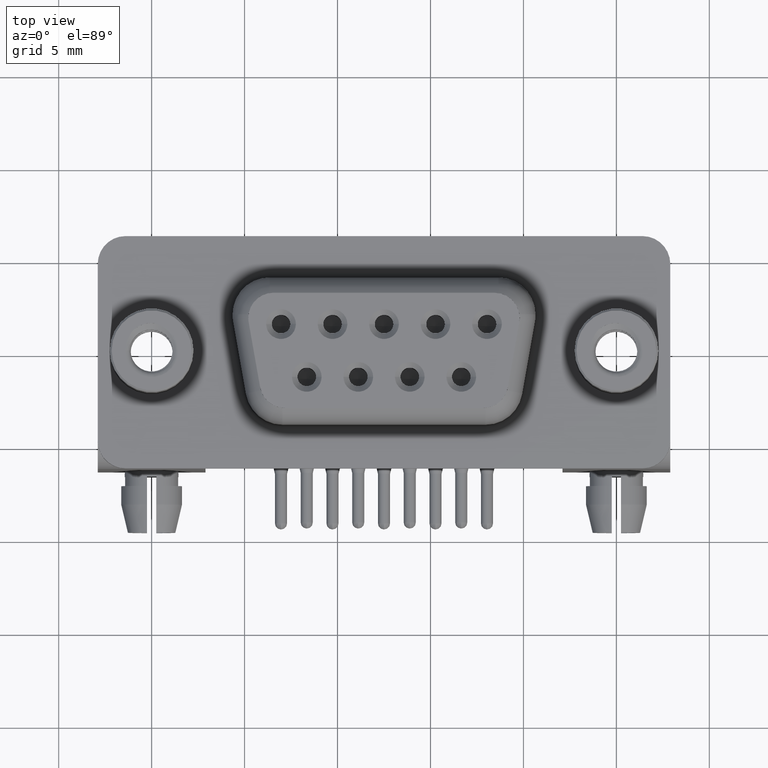
[diagram: clean part render]
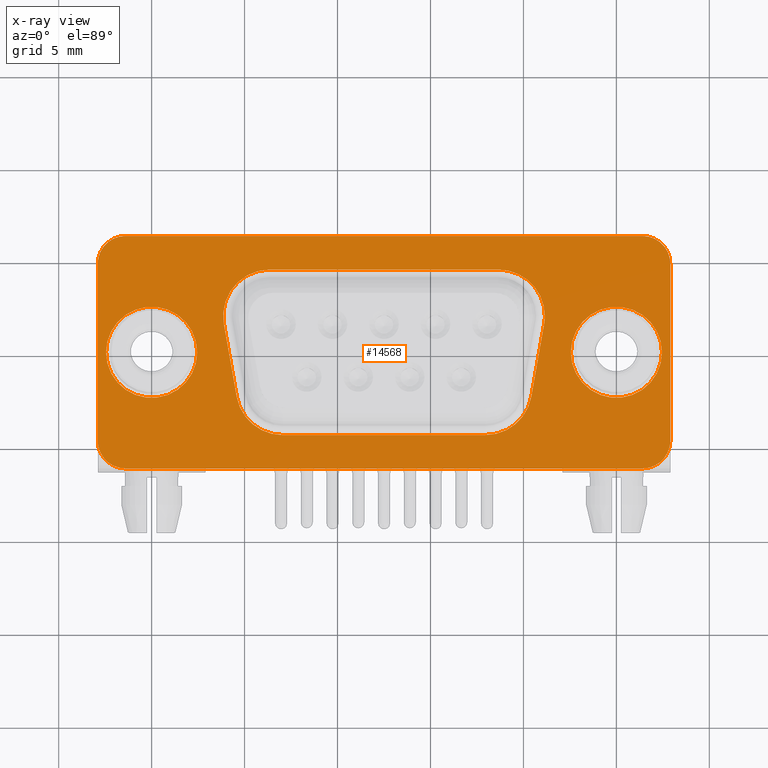
[diagram: x-ray — body ghosted, one internal face saturated and labeled with its STEP entity id]
A machine part, top view, then the same camera in x-ray: the body is ghosted and one INTERNAL B-rep face — a face not visible from any outside direction — is saturated and labeled: STEP entity #14568.
In plain terms, the highlighted planar face has unit normal (0, 0, 1).
Its self-contained STEP definition (entity closure, byte-faithful):
#3 = VERTEX_POINT ( 'NONE', #12440 ) ;
#172 = EDGE_CURVE ( 'NONE', #17113, #17099, #8562, .T. ) ;
#192 = VERTEX_POINT ( 'NONE', #14020 ) ;
#354 = CARTESIAN_POINT ( 'NONE',  ( 0.0000000000000000000, 0.0000000000000000000, 0.0000000000000000000 ) ) ;
#775 = DIRECTION ( 'NONE',  ( 1.000000000000000000, 8.673617379884040400E-016, 0.0000000000000000000 ) ) ;
#908 = AXIS2_PLACEMENT_3D ( 'NONE', #19513, #10118, #775 ) ;
#917 = CARTESIAN_POINT ( 'NONE',  ( -2.900000000000002600, -4.750000000000002700, 0.0000000000000000000 ) ) ;
#1161 = ORIENTED_EDGE ( 'NONE', *, *, #11398, .F. ) ;
#1241 = VERTEX_POINT ( 'NONE', #6275 ) ;
#1275 = CARTESIAN_POINT ( 'NONE',  ( 22.55000000000000400, 4.892463962593676000E-015, 0.0000000000000000000 ) ) ;
#1303 = AXIS2_PLACEMENT_3D ( 'NONE', #15810, #6472, #17383 ) ;
#1329 = DIRECTION ( 'NONE',  ( 1.000000000000000000, 0.0000000000000000000, 0.0000000000000000000 ) ) ;
#1383 = DIRECTION ( 'NONE',  ( -0.0000000000000000000, -0.0000000000000000000, -1.000000000000000000 ) ) ;
#1460 = DIRECTION ( 'NONE',  ( -0.0000000000000000000, -1.000000000000000000, -0.0000000000000000000 ) ) ;
#1551 = EDGE_CURVE ( 'NONE', #2898, #7067, #5359, .T. ) ;
#1634 = DIRECTION ( 'NONE',  ( 0.0000000000000000000, 0.0000000000000000000, 1.000000000000000000 ) ) ;
#1637 = DIRECTION ( 'NONE',  ( -0.1736481776669235900, 0.9848077530122093500, -0.0000000000000000000 ) ) ;
#1892 = FACE_BOUND ( 'NONE', #3114, .T. ) ;
#1904 = ORIENTED_EDGE ( 'NONE', *, *, #10377, .F. ) ;
#2034 = DIRECTION ( 'NONE',  ( -0.0000000000000000000, -0.0000000000000000000, -1.000000000000000000 ) ) ;
#2225 = VECTOR ( 'NONE', #8643, 1000.000000000000000 ) ;
#2303 = DIRECTION ( 'NONE',  ( -1.000000000000000000, -0.0000000000000000000, 0.0000000000000000000 ) ) ;
#2529 = EDGE_CURVE ( 'NONE', #17099, #8083, #11928, .T. ) ;
#2554 = CARTESIAN_POINT ( 'NONE',  ( 26.39999999999999500, -4.749999999999999100, 0.0000000000000000000 ) ) ;
#2590 = VECTOR ( 'NONE', #15975, 1000.000000000000000 ) ;
#2898 = VERTEX_POINT ( 'NONE', #917 ) ;
#3114 = EDGE_LOOP ( 'NONE', ( #6849, #4366 ) ) ;
#3308 = DIRECTION ( 'NONE',  ( 0.0000000000000000000, 0.0000000000000000000, 1.000000000000000000 ) ) ;
#3347 = ORIENTED_EDGE ( 'NONE', *, *, #3860, .F. ) ;
#3708 = LINE ( 'NONE', #11580, #2225 ) ;
#3737 = ORIENTED_EDGE ( 'NONE', *, *, #6198, .F. ) ;
#3753 = EDGE_CURVE ( 'NONE', #7067, #12472, #14574, .T. ) ;
#3806 = CARTESIAN_POINT ( 'NONE',  ( 21.11201938253053400, 1.515879555832687900, -2.168404344971008900E-016 ) ) ;
#3860 = EDGE_CURVE ( 'NONE', #12472, #19288, #18259, .T. ) ;
#3897 = EDGE_CURVE ( 'NONE', #1241, #16372, #4300, .T. ) ;
#4110 = CARTESIAN_POINT ( 'NONE',  ( 27.89999999999999900, -4.749999999999999100, 0.0000000000000000000 ) ) ;
#4122 = ORIENTED_EDGE ( 'NONE', *, *, #2529, .F. ) ;
#4154 = CARTESIAN_POINT ( 'NONE',  ( 21.15000000000001300, 1.949999999999996800, -2.168404344971008900E-016 ) ) ;
#4234 = EDGE_CURVE ( 'NONE', #11943, #17113, #19741, .T. ) ;
#4300 = CIRCLE ( 'NONE', #4404, 2.449999999999999700 ) ;
#4366 = ORIENTED_EDGE ( 'NONE', *, *, #11574, .F. ) ;
#4393 = VECTOR ( 'NONE', #1637, 999.9999999999998900 ) ;
#4404 = AXIS2_PLACEMENT_3D ( 'NONE', #354, #1383, #1329 ) ;
#4558 = ORIENTED_EDGE ( 'NONE', *, *, #12900, .F. ) ;
#4634 = AXIS2_PLACEMENT_3D ( 'NONE', #7427, #18373, #8977 ) ;
#4725 = VECTOR ( 'NONE', #18379, 1000.000000000000000 ) ;
#4882 = CARTESIAN_POINT ( 'NONE',  ( 3.887980617469481100, 1.515879555832687900, 0.0000000000000000000 ) ) ;
#4894 = ORIENTED_EDGE ( 'NONE', *, *, #14854, .F. ) ;
#4915 = ORIENTED_EDGE ( 'NONE', *, *, #12281, .F. ) ;
#4929 = CIRCLE ( 'NONE', #11207, 1.500000000000000900 ) ;
#5005 = CARTESIAN_POINT ( 'NONE',  ( 26.39999999999999500, -6.250000000000000000, 0.0000000000000000000 ) ) ;
#5041 = CARTESIAN_POINT ( 'NONE',  ( 21.11201938253054100, 1.515879555832687200, -2.168404344971008900E-016 ) ) ;
#5359 = CIRCLE ( 'NONE', #20230, 1.500000000000000400 ) ;
#5489 = DIRECTION ( 'NONE',  ( -0.0000000000000000000, -0.0000000000000000000, -1.000000000000000000 ) ) ;
#5794 = LINE ( 'NONE', #4110, #17781 ) ;
#5823 = DIRECTION ( 'NONE',  ( 0.0000000000000000000, 0.0000000000000000000, 1.000000000000000000 ) ) ;
#5860 = VERTEX_POINT ( 'NONE', #5041 ) ;
#6037 = ORIENTED_EDGE ( 'NONE', *, *, #12154, .F. ) ;
#6051 = FACE_BOUND ( 'NONE', #12178, .T. ) ;
#6134 = VERTEX_POINT ( 'NONE', #4154 ) ;
#6198 = EDGE_CURVE ( 'NONE', #8083, #8034, #16218, .T. ) ;
#6275 = CARTESIAN_POINT ( 'NONE',  ( 2.449999999999999700, 0.0000000000000000000, 0.0000000000000000000 ) ) ;
#6472 = DIRECTION ( 'NONE',  ( -0.0000000000000000000, -0.0000000000000000000, -1.000000000000000000 ) ) ;
#6531 = CARTESIAN_POINT ( 'NONE',  ( 26.39999999999999500, 4.750000000000000900, 0.0000000000000000000 ) ) ;
#6688 = CIRCLE ( 'NONE', #12891, 2.449999999999997500 ) ;
#6849 = ORIENTED_EDGE ( 'NONE', *, *, #3897, .F. ) ;
#6964 = CARTESIAN_POINT ( 'NONE',  ( 26.39999999999999500, -4.450000000000001100, 0.0000000000000000000 ) ) ;
#7067 = VERTEX_POINT ( 'NONE', #16486 ) ;
#7091 = DIRECTION ( 'NONE',  ( 1.000000000000000000, 0.0000000000000000000, 0.0000000000000000000 ) ) ;
#7287 = DIRECTION ( 'NONE',  ( -0.0000000000000000000, -0.0000000000000000000, -1.000000000000000000 ) ) ;
#7356 = CARTESIAN_POINT ( 'NONE',  ( 27.44999999999999900, 4.592425496802575200E-015, 0.0000000000000000000 ) ) ;
#7397 = CIRCLE ( 'NONE', #14461, 2.449999999999997500 ) ;
#7426 = CARTESIAN_POINT ( 'NONE',  ( 6.350000000000005900, 1.949999999999996800, -2.168404344971008900E-016 ) ) ;
#7427 = CARTESIAN_POINT ( 'NONE',  ( 0.0000000000000000000, 0.0000000000000000000, 0.0000000000000000000 ) ) ;
#7464 = VECTOR ( 'NONE', #17896, 999.9999999999998900 ) ;
#7574 = VERTEX_POINT ( 'NONE', #10121 ) ;
#7590 = AXIS2_PLACEMENT_3D ( 'NONE', #6531, #17454, #8095 ) ;
#7653 = AXIS2_PLACEMENT_3D ( 'NONE', #14843, #5489, #16423 ) ;
#7682 = CARTESIAN_POINT ( 'NONE',  ( -2.900000000000003500, -4.750000000000002700, 0.0000000000000000000 ) ) ;
#8034 = VERTEX_POINT ( 'NONE', #15861 ) ;
#8083 = VERTEX_POINT ( 'NONE', #8144 ) ;
#8095 = DIRECTION ( 'NONE',  ( 1.000000000000000000, 0.0000000000000000000, -0.0000000000000000000 ) ) ;
#8144 = CARTESIAN_POINT ( 'NONE',  ( 6.350000000000005000, 4.449999999999997500, 0.0000000000000000000 ) ) ;
#8241 = EDGE_CURVE ( 'NONE', #5860, #3, #11606, .T. ) ;
#8562 = LINE ( 'NONE', #9012, #4393 ) ;
#8643 = DIRECTION ( 'NONE',  ( -1.000000000000000000, -1.560003125878423900E-016, 0.0000000000000000000 ) ) ;
#8780 = EDGE_LOOP ( 'NONE', ( #1161, #1904 ) ) ;
#8798 = ORIENTED_EDGE ( 'NONE', *, *, #8241, .F. ) ;
#8857 = ORIENTED_EDGE ( 'NONE', *, *, #14764, .F. ) ;
#8952 = DIRECTION ( 'NONE',  ( -0.0000000000000000000, -0.0000000000000000000, -1.000000000000000000 ) ) ;
#8977 = DIRECTION ( 'NONE',  ( 1.000000000000000000, 0.0000000000000000000, 0.0000000000000000000 ) ) ;
#8978 = CARTESIAN_POINT ( 'NONE',  ( 26.39999999999999500, 4.449999999999997500, 0.0000000000000000000 ) ) ;
#9012 = CARTESIAN_POINT ( 'NONE',  ( 4.575655842232465400, -2.384120444167311200, -2.168404344971008900E-016 ) ) ;
#9447 = ORIENTED_EDGE ( 'NONE', *, *, #14531, .F. ) ;
#9847 = CARTESIAN_POINT ( 'NONE',  ( 27.89999999999999900, -4.749999999999999100, 0.0000000000000000000 ) ) ;
#9961 = VERTEX_POINT ( 'NONE', #18924 ) ;
#10015 = LINE ( 'NONE', #6964, #14183 ) ;
#10118 = DIRECTION ( 'NONE',  ( -0.0000000000000000000, -0.0000000000000000000, -1.000000000000000000 ) ) ;
#10121 = CARTESIAN_POINT ( 'NONE',  ( 26.39999999999999500, 6.250000000000001800, 0.0000000000000000000 ) ) ;
#10217 = EDGE_CURVE ( 'NONE', #8034, #6134, #11803, .T. ) ;
#10310 = AXIS2_PLACEMENT_3D ( 'NONE', #11014, #1634, #12582 ) ;
#10333 = DIRECTION ( 'NONE',  ( 0.0000000000000000000, 1.000000000000000000, 0.0000000000000000000 ) ) ;
#10377 = EDGE_CURVE ( 'NONE', #20149, #20061, #6688, .T. ) ;
#10570 = CIRCLE ( 'NONE', #4634, 2.449999999999999700 ) ;
#10915 = CARTESIAN_POINT ( 'NONE',  ( 17.96232477523702500, -4.450000000000001100, 0.0000000000000000000 ) ) ;
#11014 = CARTESIAN_POINT ( 'NONE',  ( 26.39999999999999500, 4.750000000000000900, 0.0000000000000000000 ) ) ;
#11075 = ORIENTED_EDGE ( 'NONE', *, *, #12049, .F. ) ;
#11177 = PLANE ( 'NONE',  #7590 ) ;
#11206 = FACE_OUTER_BOUND ( 'NONE', #12415, .T. ) ;
#11207 = AXIS2_PLACEMENT_3D ( 'NONE', #15198, #5823, #16739 ) ;
#11292 = LINE ( 'NONE', #7682, #19629 ) ;
#11398 = EDGE_CURVE ( 'NONE', #20061, #20149, #7397, .T. ) ;
#11400 = CARTESIAN_POINT ( 'NONE',  ( 25.00000000000000000, 4.592425496802575200E-015, 0.0000000000000000000 ) ) ;
#11436 = CIRCLE ( 'NONE', #908, 2.499999999999998700 ) ;
#11522 = ORIENTED_EDGE ( 'NONE', *, *, #4234, .F. ) ;
#11574 = EDGE_CURVE ( 'NONE', #16372, #1241, #10570, .T. ) ;
#11580 = CARTESIAN_POINT ( 'NONE',  ( 26.39999999999999500, 6.250000000000001800, 0.0000000000000000000 ) ) ;
#11606 = LINE ( 'NONE', #3806, #7464 ) ;
#11699 = VERTEX_POINT ( 'NONE', #10915 ) ;
#11803 = CIRCLE ( 'NONE', #7653, 2.500000000000002200 ) ;
#11928 = CIRCLE ( 'NONE', #16176, 2.499999999999999600 ) ;
#11943 = VERTEX_POINT ( 'NONE', #14579 ) ;
#12049 = EDGE_CURVE ( 'NONE', #7574, #192, #3708, .T. ) ;
#12154 = EDGE_CURVE ( 'NONE', #192, #12431, #4929, .T. ) ;
#12178 = EDGE_LOOP ( 'NONE', ( #16115, #11522, #12658, #8857, #8798, #9447, #13822, #3737, #4122 ) ) ;
#12281 = EDGE_CURVE ( 'NONE', #12431, #2898, #11292, .T. ) ;
#12415 = EDGE_LOOP ( 'NONE', ( #4558, #4894, #3347, #20289, #15958, #4915, #6037, #11075 ) ) ;
#12431 = VERTEX_POINT ( 'NONE', #14294 ) ;
#12440 = CARTESIAN_POINT ( 'NONE',  ( 20.42434415776755000, -2.384120444167310700, 0.0000000000000000000 ) ) ;
#12472 = VERTEX_POINT ( 'NONE', #5005 ) ;
#12582 = DIRECTION ( 'NONE',  ( 1.000000000000000000, 0.0000000000000000000, 0.0000000000000000000 ) ) ;
#12658 = ORIENTED_EDGE ( 'NONE', *, *, #13152, .F. ) ;
#12891 = AXIS2_PLACEMENT_3D ( 'NONE', #18348, #8952, #19951 ) ;
#12900 = EDGE_CURVE ( 'NONE', #9961, #7574, #18119, .T. ) ;
#12983 = DIRECTION ( 'NONE',  ( 1.000000000000000000, 0.0000000000000000000, 0.0000000000000000000 ) ) ;
#13152 = EDGE_CURVE ( 'NONE', #11699, #11943, #10015, .T. ) ;
#13618 = DIRECTION ( 'NONE',  ( -1.000000000000000000, 0.0000000000000000000, 0.0000000000000000000 ) ) ;
#13633 = DIRECTION ( 'NONE',  ( 0.0000000000000000000, 0.0000000000000000000, 1.000000000000000000 ) ) ;
#13703 = CARTESIAN_POINT ( 'NONE',  ( -1.400000000000001900, -4.750000000000002700, 0.0000000000000000000 ) ) ;
#13822 = ORIENTED_EDGE ( 'NONE', *, *, #10217, .F. ) ;
#14020 = CARTESIAN_POINT ( 'NONE',  ( -1.400000000000002100, 6.249999999999998200, 0.0000000000000000000 ) ) ;
#14148 = CARTESIAN_POINT ( 'NONE',  ( 7.037675224762990600, -1.950000000000002200, -2.168404344971008900E-016 ) ) ;
#14183 = VECTOR ( 'NONE', #2303, 1000.000000000000000 ) ;
#14294 = CARTESIAN_POINT ( 'NONE',  ( -2.900000000000003500, 4.749999999999997300, 0.0000000000000000000 ) ) ;
#14461 = AXIS2_PLACEMENT_3D ( 'NONE', #11400, #2034, #12983 ) ;
#14531 = EDGE_CURVE ( 'NONE', #6134, #5860, #19051, .T. ) ;
#14568 = ADVANCED_FACE ( 'NONE', ( #18538, #6051, #11206, #1892 ), #11177, .F. ) ;
#14574 = LINE ( 'NONE', #15948, #2590 ) ;
#14579 = CARTESIAN_POINT ( 'NONE',  ( 7.037675224762989700, -4.450000000000002800, 0.0000000000000000000 ) ) ;
#14750 = CARTESIAN_POINT ( 'NONE',  ( -2.449999999999999700, 3.000384657911015400E-016, 0.0000000000000000000 ) ) ;
#14764 = EDGE_CURVE ( 'NONE', #3, #11699, #11436, .T. ) ;
#14843 = CARTESIAN_POINT ( 'NONE',  ( 18.65000000000000900, 1.949999999999996800, -2.168404344971008900E-016 ) ) ;
#14852 = DIRECTION ( 'NONE',  ( -0.0000000000000000000, -0.0000000000000000000, -1.000000000000000000 ) ) ;
#14854 = EDGE_CURVE ( 'NONE', #19288, #9961, #5794, .T. ) ;
#15198 = CARTESIAN_POINT ( 'NONE',  ( -1.400000000000001900, 4.749999999999997300, 0.0000000000000000000 ) ) ;
#15810 = CARTESIAN_POINT ( 'NONE',  ( 18.65000000000000900, 1.949999999999996800, -2.168404344971008900E-016 ) ) ;
#15861 = CARTESIAN_POINT ( 'NONE',  ( 18.65000000000000900, 4.449999999999997500, 0.0000000000000000000 ) ) ;
#15948 = CARTESIAN_POINT ( 'NONE',  ( 26.39999999999999500, -6.249999999999999100, 0.0000000000000000000 ) ) ;
#15958 = ORIENTED_EDGE ( 'NONE', *, *, #1551, .F. ) ;
#15975 = DIRECTION ( 'NONE',  ( 1.000000000000000000, 9.360018755270542200E-017, -0.0000000000000000000 ) ) ;
#16115 = ORIENTED_EDGE ( 'NONE', *, *, #172, .F. ) ;
#16176 = AXIS2_PLACEMENT_3D ( 'NONE', #7426, #7287, #7091 ) ;
#16218 = LINE ( 'NONE', #8978, #4725 ) ;
#16372 = VERTEX_POINT ( 'NONE', #14750 ) ;
#16423 = DIRECTION ( 'NONE',  ( 1.000000000000000000, 0.0000000000000000000, 0.0000000000000000000 ) ) ;
#16486 = CARTESIAN_POINT ( 'NONE',  ( -1.400000000000001700, -6.250000000000001800, 0.0000000000000000000 ) ) ;
#16739 = DIRECTION ( 'NONE',  ( 1.000000000000000000, 0.0000000000000000000, 0.0000000000000000000 ) ) ;
#17099 = VERTEX_POINT ( 'NONE', #4882 ) ;
#17113 = VERTEX_POINT ( 'NONE', #17452 ) ;
#17383 = DIRECTION ( 'NONE',  ( 1.000000000000000000, 0.0000000000000000000, 0.0000000000000000000 ) ) ;
#17452 = CARTESIAN_POINT ( 'NONE',  ( 4.575655842232465400, -2.384120444167310700, 0.0000000000000000000 ) ) ;
#17454 = DIRECTION ( 'NONE',  ( 0.0000000000000000000, 0.0000000000000000000, 1.000000000000000000 ) ) ;
#17781 = VECTOR ( 'NONE', #10333, 1000.000000000000000 ) ;
#17896 = DIRECTION ( 'NONE',  ( -0.1736481776669242500, -0.9848077530122092400, 0.0000000000000000000 ) ) ;
#18088 = DIRECTION ( 'NONE',  ( 1.000000000000000000, 8.673617379884037400E-016, 0.0000000000000000000 ) ) ;
#18119 = CIRCLE ( 'NONE', #10310, 1.500000000000001300 ) ;
#18259 = CIRCLE ( 'NONE', #18437, 1.500000000000001300 ) ;
#18348 = CARTESIAN_POINT ( 'NONE',  ( 25.00000000000000000, 4.592425496802575200E-015, 0.0000000000000000000 ) ) ;
#18373 = DIRECTION ( 'NONE',  ( -0.0000000000000000000, -0.0000000000000000000, -1.000000000000000000 ) ) ;
#18379 = DIRECTION ( 'NONE',  ( 1.000000000000000000, 0.0000000000000000000, -0.0000000000000000000 ) ) ;
#18437 = AXIS2_PLACEMENT_3D ( 'NONE', #2554, #3308, #19213 ) ;
#18538 = FACE_BOUND ( 'NONE', #8780, .T. ) ;
#18924 = CARTESIAN_POINT ( 'NONE',  ( 27.89999999999999900, 4.750000000000000900, 0.0000000000000000000 ) ) ;
#19051 = CIRCLE ( 'NONE', #1303, 2.500000000000002200 ) ;
#19213 = DIRECTION ( 'NONE',  ( 1.000000000000000000, 0.0000000000000000000, 0.0000000000000000000 ) ) ;
#19288 = VERTEX_POINT ( 'NONE', #9847 ) ;
#19513 = CARTESIAN_POINT ( 'NONE',  ( 17.96232477523702500, -1.950000000000002200, -2.168404344971008900E-016 ) ) ;
#19629 = VECTOR ( 'NONE', #1460, 1000.000000000000000 ) ;
#19741 = CIRCLE ( 'NONE', #20170, 2.499999999999999600 ) ;
#19951 = DIRECTION ( 'NONE',  ( 1.000000000000000000, 0.0000000000000000000, 0.0000000000000000000 ) ) ;
#20061 = VERTEX_POINT ( 'NONE', #7356 ) ;
#20149 = VERTEX_POINT ( 'NONE', #1275 ) ;
#20170 = AXIS2_PLACEMENT_3D ( 'NONE', #14148, #14852, #18088 ) ;
#20230 = AXIS2_PLACEMENT_3D ( 'NONE', #13703, #13633, #13618 ) ;
#20289 = ORIENTED_EDGE ( 'NONE', *, *, #3753, .F. ) ;